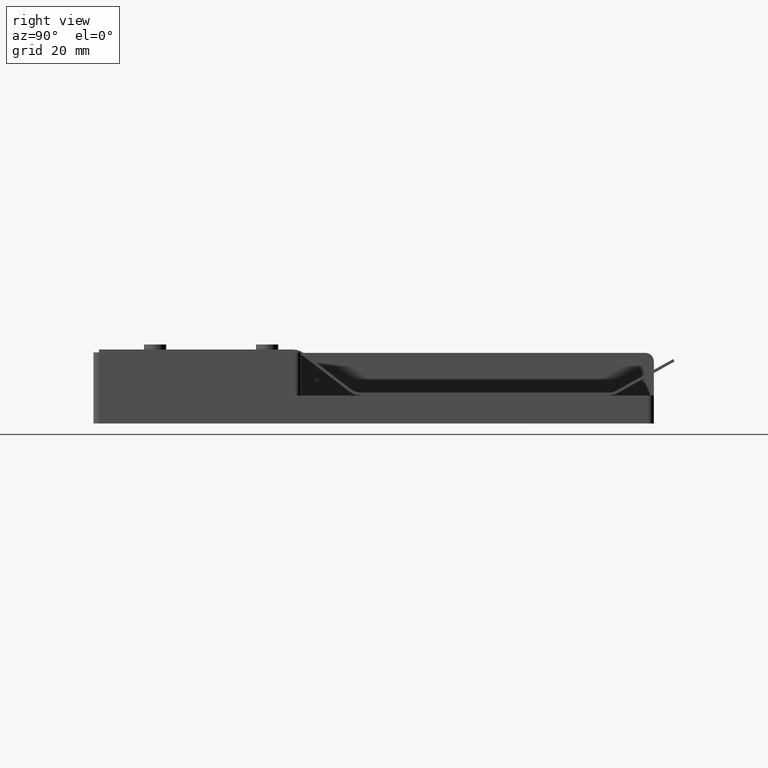
[diagram: clean part render]
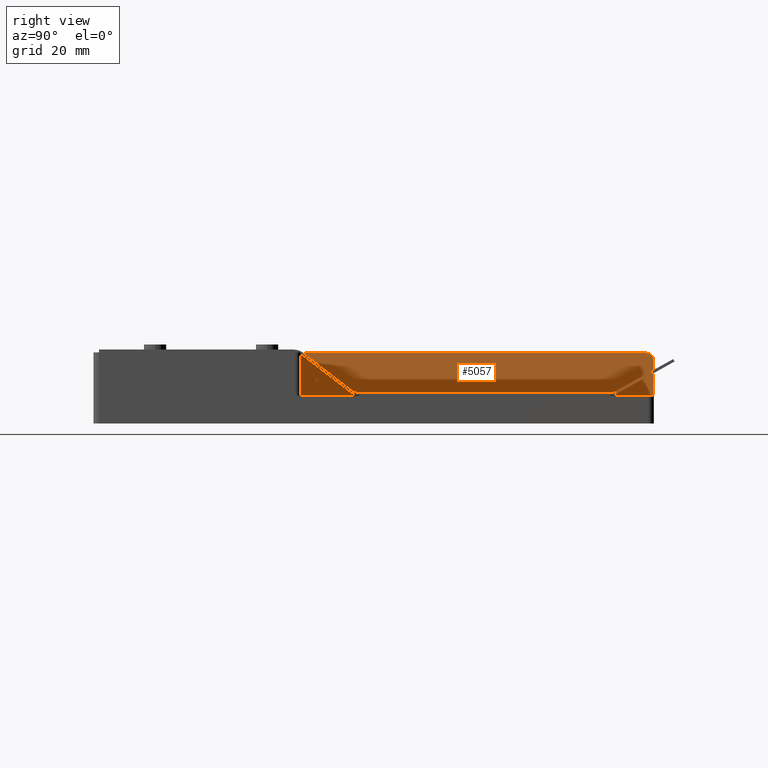
[diagram: same view with one face highlighted and labeled with its STEP entity id]
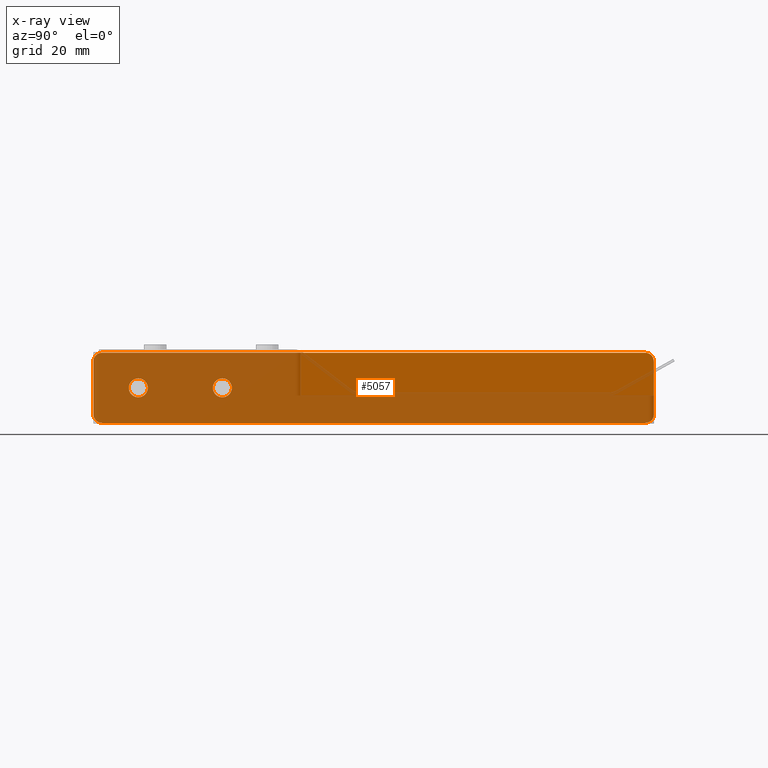
[diagram: x-ray of the same camera — body ghosted, the highlighted face saturated]
A machine part, right view. The second image highlights one B-rep face of the part: STEP entity #5057.
The next image is the same camera in x-ray: the body ghosted, the highlighted face saturated — about 64% of this face is hidden behind the body in this view.
In plain terms, the highlighted planar face has unit normal (-1, 0, 0).
Its self-contained STEP definition (entity closure, byte-faithful):
#6 = CARTESIAN_POINT ( 'NONE',  ( -61.42730352438956500, 58.40078027591884100, 1.599999999997633800 ) ) ;
#430 = DIRECTION ( 'NONE',  ( -1.000000000000000000, 0.0000000000000000000, 0.0000000000000000000 ) ) ;
#433 = CARTESIAN_POINT ( 'NONE',  ( -61.42730352438956500, 8.400780275918842600, 6.349999999997634400 ) ) ;
#435 = PLANE ( 'NONE',  #1775 ) ;
#437 = DIRECTION ( 'NONE',  ( 0.0000000000000000000, 0.0000000000000000000, 1.000000000000000000 ) ) ;
#560 = VERTEX_POINT ( 'NONE', #3882 ) ;
#561 = VERTEX_POINT ( 'NONE', #3881 ) ;
#731 = FACE_BOUND ( 'NONE', #2931, .T. ) ;
#736 = FACE_BOUND ( 'NONE', #2933, .T. ) ;
#739 = FACE_OUTER_BOUND ( 'NONE', #2942, .T. ) ;
#1070 = CIRCLE ( 'NONE', #1705, 1.500000000000000000 ) ;
#1072 = CIRCLE ( 'NONE', #1704, 1.499999999999999600 ) ;
#1073 = VECTOR ( 'NONE', #3134, 1000.000000000000000 ) ;
#1075 = LINE ( 'NONE', #3117, #1073 ) ;
#1077 = VECTOR ( 'NONE', #3129, 1000.000000000000000 ) ;
#1080 = LINE ( 'NONE', #3128, #1077 ) ;
#1088 = VECTOR ( 'NONE', #3116, 1000.000000000000000 ) ;
#1107 = CIRCLE ( 'NONE', #1699, 1.500000000000000000 ) ;
#1108 = LINE ( 'NONE', #3109, #1088 ) ;
#1110 = CIRCLE ( 'NONE', #1697, 1.699999999999994000 ) ;
#1132 = VECTOR ( 'NONE', #3058, 1000.000000000000000 ) ;
#1134 = LINE ( 'NONE', #3050, #1132 ) ;
#1140 = CIRCLE ( 'NONE', #1693, 1.699999999999994000 ) ;
#1164 = CIRCLE ( 'NONE', #1687, 1.499999999999999600 ) ;
#1687 = AXIS2_PLACEMENT_3D ( 'NONE', #3994, #3995, #3996 ) ;
#1693 = AXIS2_PLACEMENT_3D ( 'NONE', #3053, #3054, #3055 ) ;
#1697 = AXIS2_PLACEMENT_3D ( 'NONE', #3085, #3086, #3087 ) ;
#1699 = AXIS2_PLACEMENT_3D ( 'NONE', #3094, #3095, #3096 ) ;
#1704 = AXIS2_PLACEMENT_3D ( 'NONE', #3137, #3138, #3139 ) ;
#1705 = AXIS2_PLACEMENT_3D ( 'NONE', #4461, #4463, #4465 ) ;
#1775 = AXIS2_PLACEMENT_3D ( 'NONE', #433, #430, #437 ) ;
#2499 = VERTEX_POINT ( 'NONE', #2956 ) ;
#2503 = VERTEX_POINT ( 'NONE', #2959 ) ;
#2504 = VERTEX_POINT ( 'NONE', #5194 ) ;
#2508 = VERTEX_POINT ( 'NONE', #5190 ) ;
#2513 = VERTEX_POINT ( 'NONE', #5185 ) ;
#2515 = VERTEX_POINT ( 'NONE', #5183 ) ;
#2528 = VERTEX_POINT ( 'NONE', #4017 ) ;
#2530 = VERTEX_POINT ( 'NONE', #6 ) ;
#2801 = ORIENTED_EDGE ( 'NONE', *, *, #4417, .T. ) ;
#2802 = ORIENTED_EDGE ( 'NONE', *, *, #4413, .T. ) ;
#2803 = ORIENTED_EDGE ( 'NONE', *, *, #4363, .T. ) ;
#2804 = ORIENTED_EDGE ( 'NONE', *, *, #4382, .T. ) ;
#2805 = ORIENTED_EDGE ( 'NONE', *, *, #4398, .T. ) ;
#2806 = ORIENTED_EDGE ( 'NONE', *, *, #4415, .T. ) ;
#2807 = ORIENTED_EDGE ( 'NONE', *, *, #4419, .T. ) ;
#2808 = ORIENTED_EDGE ( 'NONE', *, *, #4407, .T. ) ;
#2809 = ORIENTED_EDGE ( 'NONE', *, *, #4380, .T. ) ;
#2810 = ORIENTED_EDGE ( 'NONE', *, *, #4395, .T. ) ;
#2931 = EDGE_LOOP ( 'NONE', ( #2809 ) ) ;
#2933 = EDGE_LOOP ( 'NONE', ( #2810 ) ) ;
#2942 = EDGE_LOOP ( 'NONE', ( #2808, #2807, #2806, #2805, #2804, #2803, #2802, #2801 ) ) ;
#2956 = CARTESIAN_POINT ( 'NONE',  ( -61.42730352438956500, -40.09921972408115900, 0.09999999999763409300 ) ) ;
#2959 = CARTESIAN_POINT ( 'NONE',  ( -61.42730352438956500, 56.90078027591884100, 12.59999999999763400 ) ) ;
#3050 = CARTESIAN_POINT ( 'NONE',  ( -61.42730352438956500, 58.40078027591884100, 12.59999999999763400 ) ) ;
#3053 = CARTESIAN_POINT ( 'NONE',  ( -61.42730352438956500, -18.59921972408115900, 6.349999999997634400 ) ) ;
#3054 = DIRECTION ( 'NONE',  ( -1.000000000000000000, 0.0000000000000000000, 0.0000000000000000000 ) ) ;
#3055 = DIRECTION ( 'NONE',  ( 0.0000000000000000000, 0.0000000000000000000, 1.000000000000000000 ) ) ;
#3058 = DIRECTION ( 'NONE',  ( -0.0000000000000000000, -0.0000000000000000000, 1.000000000000000000 ) ) ;
#3085 = CARTESIAN_POINT ( 'NONE',  ( -61.42730352438956500, -33.59921972408115900, 6.349999999997634400 ) ) ;
#3086 = DIRECTION ( 'NONE',  ( -1.000000000000000000, 0.0000000000000000000, 0.0000000000000000000 ) ) ;
#3087 = DIRECTION ( 'NONE',  ( 0.0000000000000000000, 0.0000000000000000000, 1.000000000000000000 ) ) ;
#3094 = CARTESIAN_POINT ( 'NONE',  ( -61.42730352438956500, 56.90078027591884100, 1.599999999997633800 ) ) ;
#3095 = DIRECTION ( 'NONE',  ( 1.000000000000000000, -0.0000000000000000000, -0.0000000000000000000 ) ) ;
#3096 = DIRECTION ( 'NONE',  ( 0.0000000000000000000, 0.0000000000000000000, 1.000000000000000000 ) ) ;
#3109 = CARTESIAN_POINT ( 'NONE',  ( -61.42730352438956500, -41.59921972408116600, 12.59999999999763400 ) ) ;
#3116 = DIRECTION ( 'NONE',  ( 0.0000000000000000000, 0.0000000000000000000, -1.000000000000000000 ) ) ;
#3117 = CARTESIAN_POINT ( 'NONE',  ( -61.42730352438956500, -41.59921972408116600, 0.09999999999763409300 ) ) ;
#3128 = CARTESIAN_POINT ( 'NONE',  ( -61.42730352438956500, -41.59921972408116600, 12.59999999999763400 ) ) ;
#3129 = DIRECTION ( 'NONE',  ( -0.0000000000000000000, -1.000000000000000000, -0.0000000000000000000 ) ) ;
#3134 = DIRECTION ( 'NONE',  ( 0.0000000000000000000, 1.000000000000000000, 0.0000000000000000000 ) ) ;
#3137 = CARTESIAN_POINT ( 'NONE',  ( -61.42730352438956500, -40.09921972408115900, 11.09999999999763500 ) ) ;
#3138 = DIRECTION ( 'NONE',  ( 1.000000000000000000, -0.0000000000000000000, -0.0000000000000000000 ) ) ;
#3139 = DIRECTION ( 'NONE',  ( 0.0000000000000000000, 0.0000000000000000000, 1.000000000000000000 ) ) ;
#3881 = CARTESIAN_POINT ( 'NONE',  ( -61.42730352438956500, -18.59921972408115900, 8.049999999997629300 ) ) ;
#3882 = CARTESIAN_POINT ( 'NONE',  ( -61.42730352438956500, -33.59921972408115900, 8.049999999997629300 ) ) ;
#3994 = CARTESIAN_POINT ( 'NONE',  ( -61.42730352438956500, 56.90078027591884100, 11.09999999999763500 ) ) ;
#3995 = DIRECTION ( 'NONE',  ( 1.000000000000000000, -0.0000000000000000000, -0.0000000000000000000 ) ) ;
#3996 = DIRECTION ( 'NONE',  ( 0.0000000000000000000, 0.0000000000000000000, 1.000000000000000000 ) ) ;
#4017 = CARTESIAN_POINT ( 'NONE',  ( -61.42730352438956500, -40.09921972408115900, 12.59999999999763400 ) ) ;
#4363 = EDGE_CURVE ( 'NONE', #2508, #2503, #1164, .T. ) ;
#4380 = EDGE_CURVE ( 'NONE', #561, #561, #1140, .T. ) ;
#4382 = EDGE_CURVE ( 'NONE', #2530, #2508, #1134, .T. ) ;
#4395 = EDGE_CURVE ( 'NONE', #560, #560, #1110, .T. ) ;
#4398 = EDGE_CURVE ( 'NONE', #2515, #2530, #1107, .T. ) ;
#4407 = EDGE_CURVE ( 'NONE', #2504, #2513, #1108, .T. ) ;
#4413 = EDGE_CURVE ( 'NONE', #2503, #2528, #1080, .T. ) ;
#4415 = EDGE_CURVE ( 'NONE', #2499, #2515, #1075, .T. ) ;
#4417 = EDGE_CURVE ( 'NONE', #2528, #2504, #1072, .T. ) ;
#4419 = EDGE_CURVE ( 'NONE', #2513, #2499, #1070, .T. ) ;
#4461 = CARTESIAN_POINT ( 'NONE',  ( -61.42730352438956500, -40.09921972408115900, 1.599999999997633800 ) ) ;
#4463 = DIRECTION ( 'NONE',  ( 1.000000000000000000, -0.0000000000000000000, -0.0000000000000000000 ) ) ;
#4465 = DIRECTION ( 'NONE',  ( 0.0000000000000000000, 0.0000000000000000000, 1.000000000000000000 ) ) ;
#5057 = ADVANCED_FACE ( 'NONE', ( #736, #731, #739 ), #435, .F. ) ;
#5183 = CARTESIAN_POINT ( 'NONE',  ( -61.42730352438956500, 56.90078027591884100, 0.09999999999763409300 ) ) ;
#5185 = CARTESIAN_POINT ( 'NONE',  ( -61.42730352438956500, -41.59921972408116600, 1.599999999997633800 ) ) ;
#5190 = CARTESIAN_POINT ( 'NONE',  ( -61.42730352438956500, 58.40078027591884100, 11.09999999999763500 ) ) ;
#5194 = CARTESIAN_POINT ( 'NONE',  ( -61.42730352438956500, -41.59921972408116600, 11.09999999999763500 ) ) ;